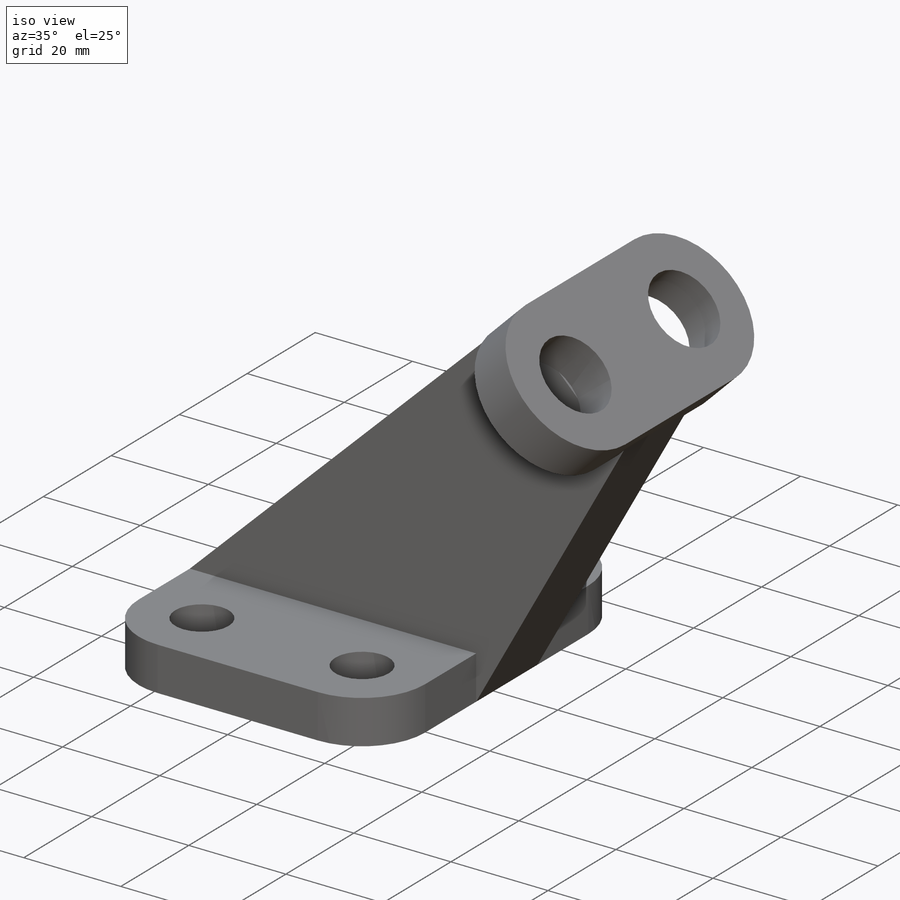
[diagram: iso view]
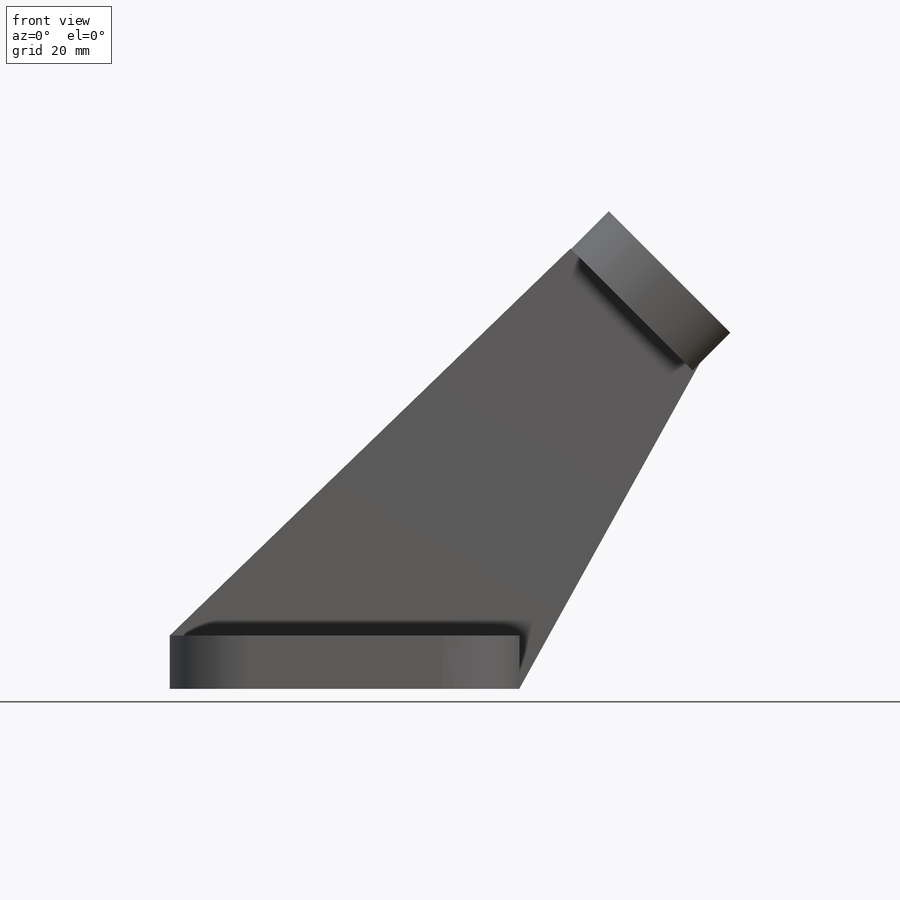
[diagram: front view]
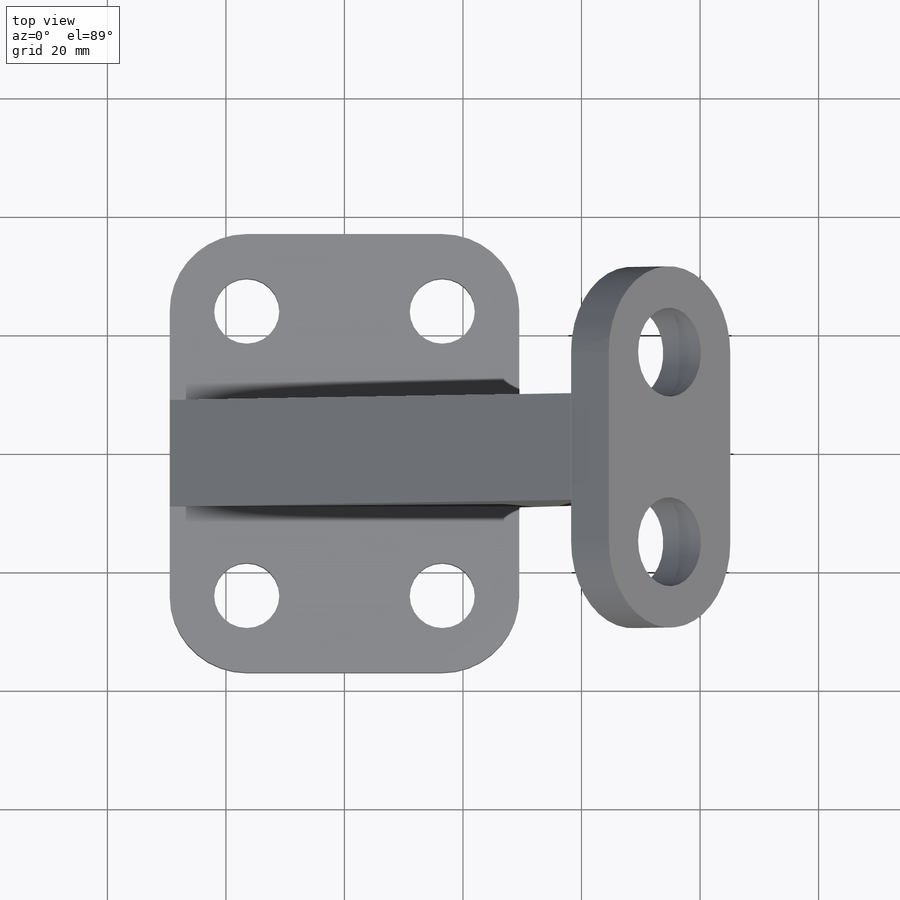
[diagram: top view]
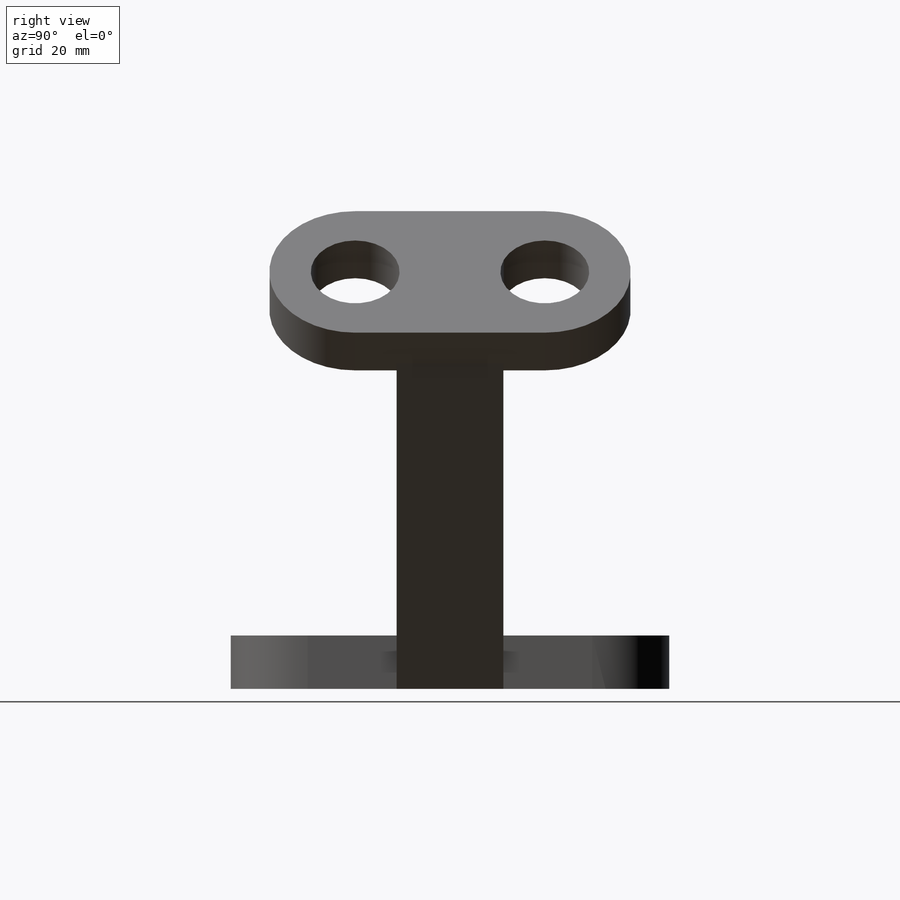
[diagram: right view]
SOLIDWORKS PART (.sldprt)
format: sldprt  version: not decoded by parser v0  size: 214,528 bytes
history: native  units: mm
features: sketch x5, extrude x3, plane x2, material x1, fillet x1 (+11 scaffold rows collapsed)
feature tree (23):
  scaffold x11  (default folders/planes/origin — collapsed)
  material  "Material <not specified>"
  sketch  "Sketch1"  dims[D11=11.0mm D12=11.0mm D13=11.0mm D14=11.0mm D1=74.0mm D2=59.0mm D3=13.0mm D4=13.0mm D5=13.0mm D6=13.0mm D7=13.0mm D8=13.0mm D9=13.0mm D10=13.0mm]
  extrude  "Boss-Extrude1"  Depth=9mm
  fillet  "Fillet1"  Radius=13mm
  sketch  "Sketch3"  dims[D1=70.36mm D2=84.36mm]
  plane  "Plane2"
  sketch  "Sketch4"
  plane  "Plane3"
  sketch  "Sketch5"  dims[D2=14.5mm D3=15.0mm D4=15.0mm D1=32.0mm]
  extrude  "Boss-Extrude2"  Depth=9mm
  sketch  "Sketch6"  dims[c1.D1=~53.742991mm c2.D1=~61.443198deg c2.D2=~61.186748mm c3.D1=~49.802118mm c4.D1=61.0deg c4.D2=~62.129828mm c5.D2=44.0deg]
  extrude  "Boss-Extrude3"  Depth=18mm
decode coverage: 8 of 9 modeling features carry decoded parameters
note: ~ marks probable driven/reference dimensions
note: suppression state not decoded; provenance and decode notes live in map.json
